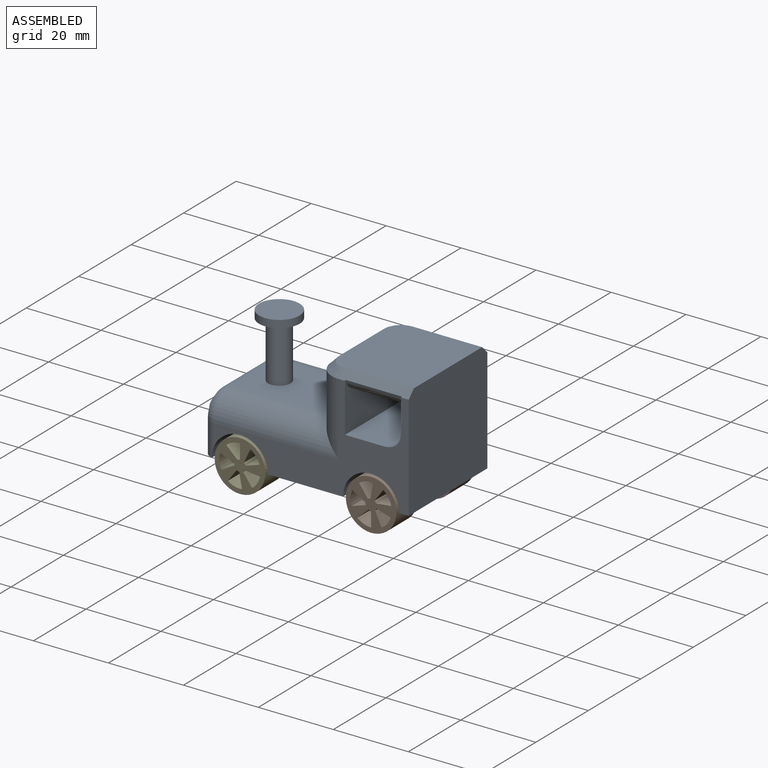
[diagram: assembled view]
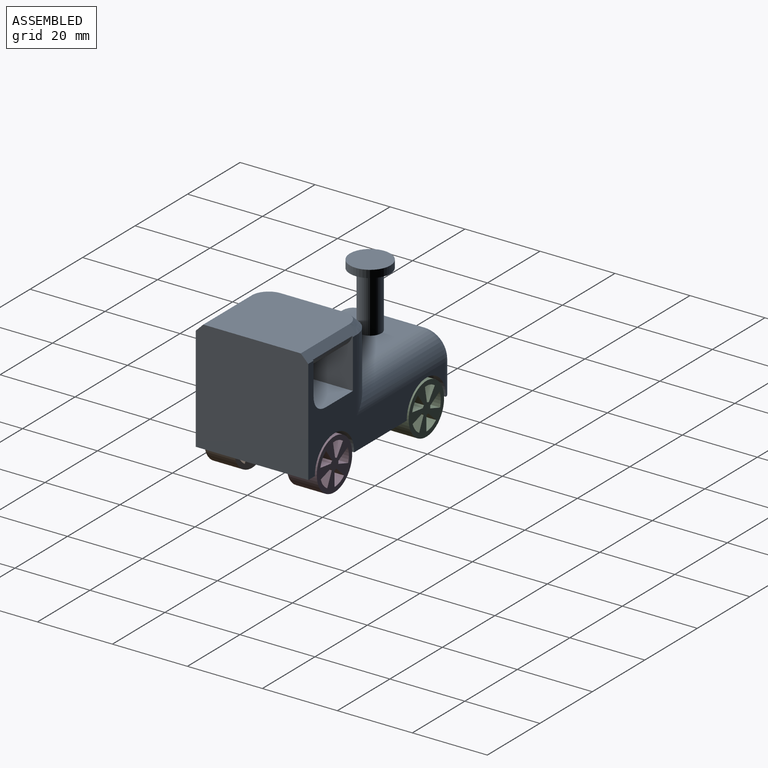
[diagram: assembled view, second angle]
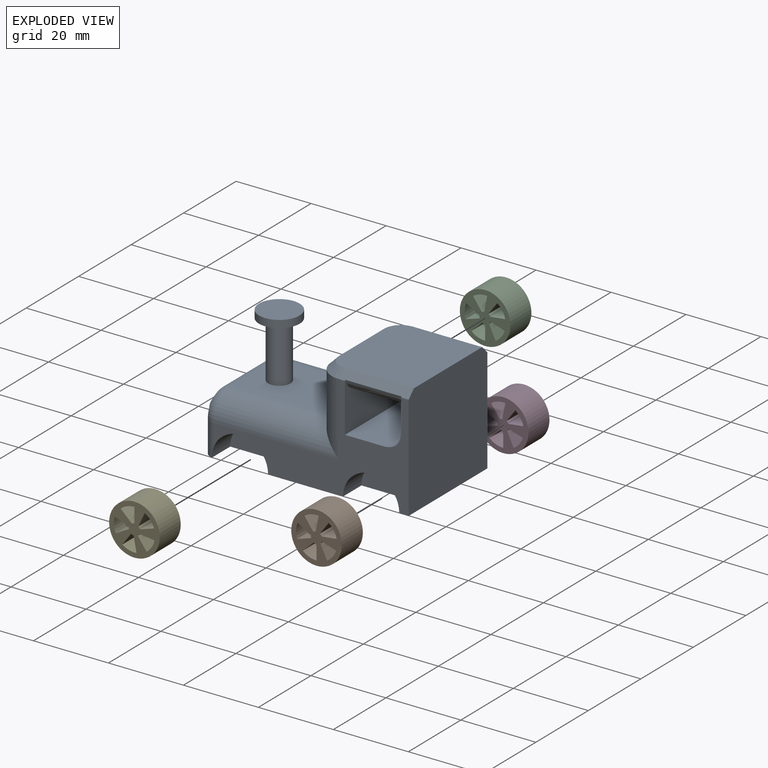
[diagram: exploded view]
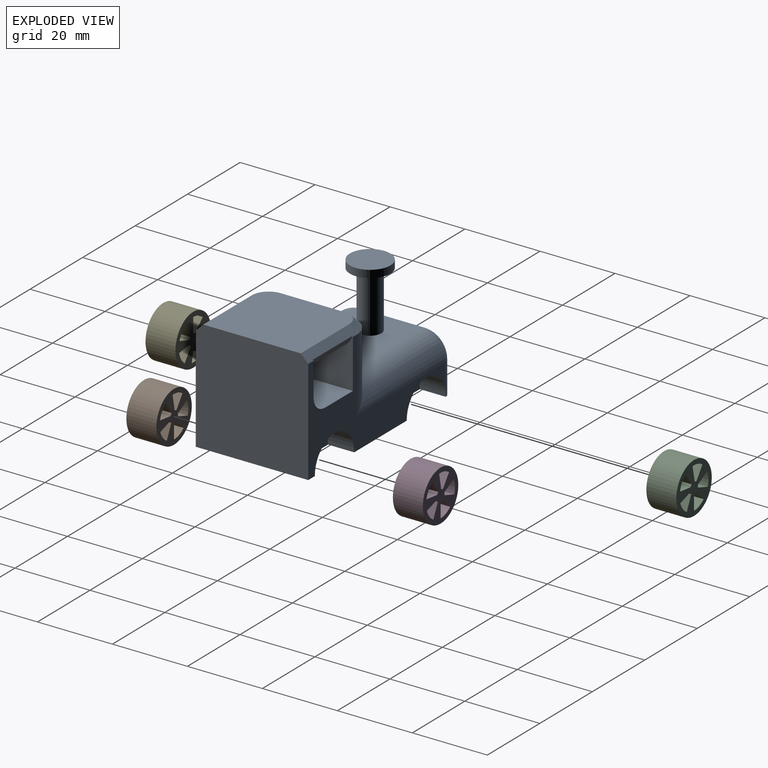
[diagram: exploded view, second angle]
ASSEMBLY  parts=5 mates=4
PART A: 45 faces, bbox 56.3x33.3x32.3 mm
  f0: plane 52.23x28.23mm, normal (0,-1,0), area 436.4mm2, adj f4,f5,f8,f10,f18,f19,f20,f25
  f1: plane 52.23x28.23mm, normal (0,1,0), area 435.8mm2, adj f4,f5,f12,f14,f16,f17,f24,f25
  f2: plane 24x12mm, normal (-1,0,0), area 267mm2, adj f5,f29,f31,f40,f41,f42,f43,f44
  f3: plane 26x23mm, normal (0,0,1), area 589.3mm2, adj f4,f20,f21,f22,f23,f24
  f4: plane 30x30mm, normal (1,0,0), area 896mm2, adj f0,f1,f3,f5,f20,f24
  f5: plane 55x30mm, normal (0,0,-1), area 1226.2mm2, adj f0,f1,f2,f4,f8,f9,f10,f11
  f6: plane 27x17mm, normal (0,0,1), area 430.7mm2, adj f7,f17,f18,f33,f42
  f7: plane 17x13mm, normal (-1,0,0), area 221mm2, adj f6,f16,f19,f22
  f8: cylinder r=7.5mm len=15mm, axis (0,-1,0), area 164.9mm2, adj f0,f5,f9
  f9: plane 15x7.5mm, normal (0,-1,0), area 88.4mm2, adj f5,f8
  f10: cylinder r=7.5mm len=15mm, axis (0,-1,0), area 164.9mm2, adj f0,f5,f11,f40
  f11: plane 15x7.5mm, normal (0,-1,0), area 88.4mm2, adj f5,f10
  f12: cylinder r=7.5mm len=15mm, axis (0,1,0), area 164.9mm2, adj f1,f5,f13
  f13: plane 15x7.5mm, normal (0,1,0), area 88.4mm2, adj f5,f12
  f14: cylinder r=7.5mm len=15mm, axis (0,1,0), area 164.9mm2, adj f1,f5,f15,f44
  f15: plane 15x7.5mm, normal (0,1,0), area 88.4mm2, adj f5,f14
  f16: cylinder r=6.5mm len=19.5mm, axis (0,0,1), area 165.9mm2, adj f1,f7,f17,f23
  f17: cylinder r=6.5mm len=33.5mm, axis (1,0,0), area 308.9mm2, adj f1,f6,f16,f43
  f18: cylinder r=6.5mm len=33.5mm, axis (1,0,0), area 308.9mm2, adj f0,f6,f19,f41
  f19: cylinder r=6.5mm len=19.5mm, axis (0,0,1), area 165.9mm2, adj f0,f7,f18,f21
  f20: plane 18.5x2mm, normal (0,-0.71,0.71), area 48.4mm2, adj f0,f3,f4,f21,f25,f27,f38
  f21: cone r=4.5mm half-angle=45deg, axis (0,0,-1), area 24.4mm2, adj f3,f19,f20,f22
  f22: plane 17x2mm, normal (-0.71,0,0.71), area 48.1mm2, adj f3,f7,f21,f23
  f23: cone r=4.5mm half-angle=45deg, axis (0,0,-1), area 24.4mm2, adj f3,f16,f22,f24
  f24: plane 18.5x2mm, normal (0,0.71,0.71), area 48.4mm2, adj f1,f3,f4,f23,f25,f27,f39
  f25: plane 30.28x8.46mm, normal (-1,0,0), area 158mm2, adj f0,f1,f20,f24,f26,f37,f38,f39
  f26: plane 20x15mm, normal (0,0,-1), area 300mm2, adj f25,f27,f38,f39
  f27: plane 30.28x13.46mm, normal (1,0,0), area 308.1mm2, adj f0,f1,f20,f24,f26,f28,f38,f39
  f28: plane 30x10mm, normal (0,0,1), area 300mm2, adj f0,f1,f27,f37
  f29: cylinder r=1.5mm len=3mm, axis (1,0,0), area 9.4mm2, adj f2,f30
  f30: plane 3x3mm, normal (-1,0,0), area 7.1mm2, adj f29
  f31: cylinder r=1.67mm len=3.33mm, axis (1,0,0), area 10.5mm2, adj f2,f32
  f32: plane 3.33x3.33mm, normal (-1,0,0), area 8.7mm2, adj f31
  f33: cylinder r=3mm len=15mm, axis (0,0,-1), area 282.7mm2, adj f6,f36
  f34: cylinder r=5.41mm len=10.82mm, axis (0,0,-1), area 68mm2, adj f35,f36
  f35: plane 10.82x10.82mm, normal (0,0,1), area 91.9mm2, adj f34
  f36: plane 10.82x10.82mm, normal (0,0,-1), area 63.6mm2, adj f33,f34
  f37: bspline ~33x5mm, area 243.9mm2, adj f0,f1,f25,f28
  f38: bspline ~16.5x5mm, area 94.5mm2, adj f20,f25,f26,f27
  f39: bspline ~16.5x5mm, area 94.5mm2, adj f24,f25,f26,f27
  f40: cylinder r=3mm len=8.5mm, axis (0,0,-1), area 39.4mm2, adj f0,f2,f5,f10,f41
  f41: torus R=3.5mm, axis (1,0,0), area 40mm2, adj f2,f18,f40,f42
  f42: cylinder r=3mm len=17mm, axis (0,-1,0), area 80.1mm2, adj f2,f6,f41,f43
  f43: torus R=3.5mm, axis (1,0,0), area 40mm2, adj f2,f17,f42,f44
  f44: cylinder r=3mm len=8.5mm, axis (0,0,1), area 39.4mm2, adj f1,f2,f5,f14,f43
PART B: 23 faces, bbox 13.5x13.5x8 mm
  f0: plane 13.5x13.5mm, normal (0,0,1), area 95.7mm2, adj f2,f3,f4,f5,f6,f7,f8,f9
  f1: plane 13.5x13.5mm, normal (0,0,-1), area 95.7mm2, adj f2,f3,f4,f5,f6,f7,f8,f9
  f2: cylinder r=6.75mm len=13.5mm, axis (0,0,-1), area 339.3mm2, adj f0,f1
  f3: plane 8x2.97mm, normal (0.68,0.73,0), area 32.5mm2, adj f0,f1,f4,f6
  f4: cylinder r=1.5mm len=8mm, axis (0,0,1), area 5.8mm2, adj f0,f1,f3,f5
  f5: plane 8x4mm, normal (-1,0,0), area 32mm2, adj f0,f1,f4,f6
  f6: cylinder r=5.5mm len=8mm, axis (0,0,1), area 32.1mm2, adj f0,f1,f3,f5
  f7: plane 8x3.68mm, normal (0.91,-0.42,0), area 32.5mm2, adj f0,f1,f8,f10
  f8: cylinder r=1.5mm len=8mm, axis (0,0,1), area 5.8mm2, adj f0,f1,f7,f9
  f9: plane 8x3.8mm, normal (-0.31,0.95,0), area 32mm2, adj f0,f1,f8,f10
  f10: cylinder r=5.5mm len=8mm, axis (0,0,1), area 32.1mm2, adj f0,f1,f7,f9
  f11: plane 8x4.03mm, normal (-0.12,-0.99,0), area 32.5mm2, adj f0,f1,f12,f14
  f12: cylinder r=1.5mm len=8mm, axis (0,0,1), area 5.8mm2, adj f0,f1,f11,f13
  f13: plane 8x3.24mm, normal (0.81,0.59,0), area 32mm2, adj f0,f1,f12,f14
  f14: cylinder r=5.5mm len=8mm, axis (0,0,1), area 32.1mm2, adj f0,f1,f11,f13
  f15: plane 8x3.55mm, normal (-0.48,0.87,0), area 32.5mm2, adj f0,f1,f16,f18
  f16: cylinder r=1.5mm len=8mm, axis (0,0,1), area 5.8mm2, adj f0,f1,f15,f17
  f17: plane 8x3.8mm, normal (-0.31,-0.95,0), area 32mm2, adj f0,f1,f16,f18
  f18: cylinder r=5.5mm len=8mm, axis (0,0,1), area 32.1mm2, adj f0,f1,f15,f17
  f19: plane 8x3.99mm, normal (-0.98,-0.19,0), area 32.5mm2, adj f0,f1,f20,f22
  f20: cylinder r=1.5mm len=8mm, axis (0,0,1), area 5.8mm2, adj f0,f1,f19,f21
  f21: plane 8x3.24mm, normal (0.81,-0.59,0), area 32mm2, adj f0,f1,f20,f22
  f22: cylinder r=5.5mm len=8mm, axis (0,0,1), area 32.1mm2, adj f0,f1,f19,f21
PART C: same geometry as B
PART D: same geometry as B
PART E: same geometry as B
PLACE A t=(-27.7,41.09,10.27)mm
PLACE B rot(axis=(-1,0,0),90deg) t=(-10.2,26.09,10.27)mm
PLACE C rot(axis=(-1,0,0),90deg) t=(-45.2,48.09,10.27)mm
PLACE D rot(axis=(-1,0,0),90deg) t=(-10.2,48.09,10.27)mm
PLACE E rot(axis=(1,0,0),90deg) t=(-45.2,34.09,10.27)mm
MATE fastened B.f4 <-> A.f8  axis (0,-1,0) through (-10.2,26.09,10.27)mm
MATE fastened D.f4 <-> A.f8  axis (0,1,0) through (-10.2,56.09,10.27)mm
MATE fastened C.f4 <-> A.f10  axis (0,1,0) through (-45.2,56.09,10.27)mm
MATE fastened E.f4 <-> A.f10  axis (0,-1,0) through (-45.2,26.09,10.27)mm
